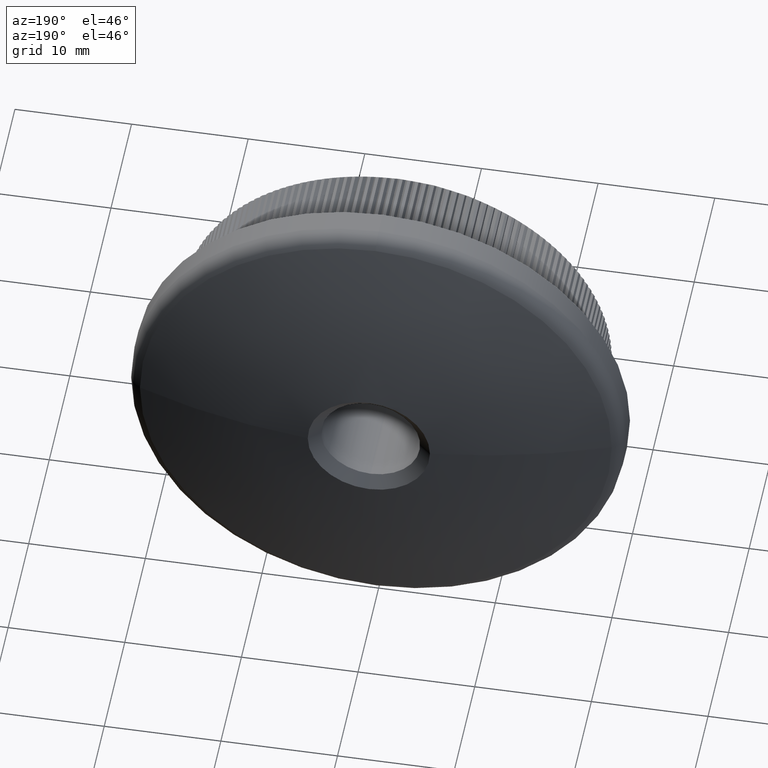
[diagram: clean part render]
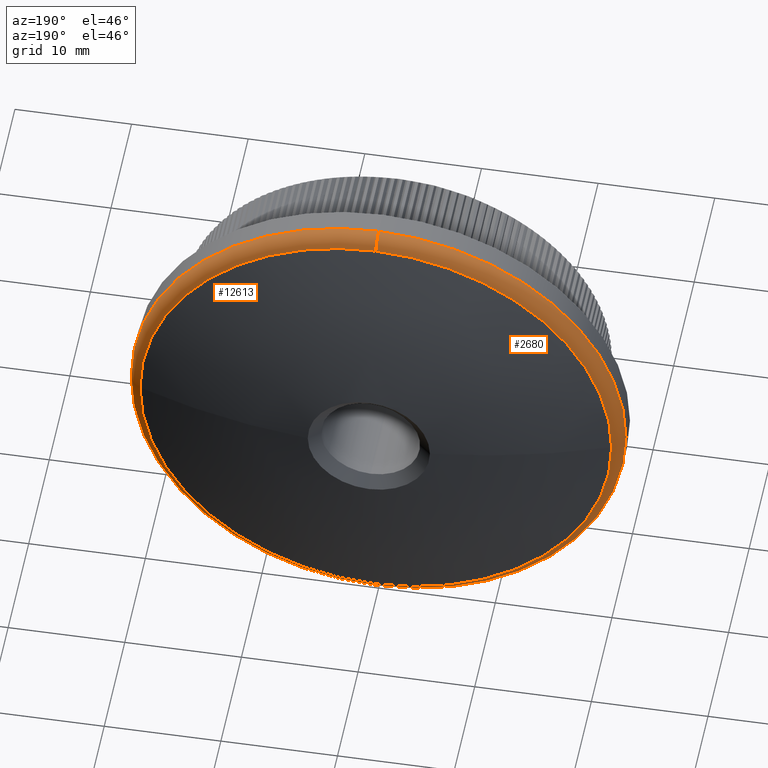
[diagram: same view with one multi-face feature highlighted, each face labeled with its STEP entity id]
A machine part, auxiliary view. The highlighted faces form ONE feature: a constant-radius fillet chain: 2 tangent blend faces with common blend radius 1.5 mm. The faces share edges in the B-rep.
Their STEP definitions:
[1] entity #12613 (Torus):
#208 = EDGE_CURVE ( 'NONE', #25023, #24635, #15326, .T. ) ;
#253 = EDGE_CURVE ( 'NONE', #29032, #4001, #10134, .T. ) ;
#1217 = ORIENTED_EDGE ( 'NONE', *, *, #9203, .F. ) ;
#1534 = CARTESIAN_POINT ( 'NONE',  ( 2.596251214192389200E-015, 9.966330070852492900, 21.20000000000000300 ) ) ;
#2804 = DIRECTION ( 'NONE',  ( 0.0000000000000000000, 0.0000000000000000000, -1.000000000000000000 ) ) ;
#3264 = AXIS2_PLACEMENT_3D ( 'NONE', #26997, #15150, #19947 ) ;
#3289 = VERTEX_POINT ( 'NONE', #25928 ) ;
#4001 = VERTEX_POINT ( 'NONE', #4690 ) ;
#4453 = DIRECTION ( 'NONE',  ( 0.0000000000000000000, 0.0000000000000000000, -1.000000000000000000 ) ) ;
#4690 = CARTESIAN_POINT ( 'NONE',  ( 0.0000000000000000000, 9.966330070852492900, -21.20000000000000300 ) ) ;
#4930 = CIRCLE ( 'NONE', #3264, 20.22134791813691000 ) ;
#5394 = CARTESIAN_POINT ( 'NONE',  ( 2.412554194320286400E-015, 9.966330070852492900, 19.70000000000000300 ) ) ;
#7338 = AXIS2_PLACEMENT_3D ( 'NONE', #15209, #10259, #17723 ) ;
#7886 = DIRECTION ( 'NONE',  ( -0.0000000000000000000, -1.000000000000000000, -0.0000000000000000000 ) ) ;
#9203 = EDGE_CURVE ( 'NONE', #25023, #3289, #4930, .T. ) ;
#10134 = CIRCLE ( 'NONE', #7338, 1.500000000000001300 ) ;
#10259 = DIRECTION ( 'NONE',  ( -1.000000000000000000, 0.0000000000000000000, 0.0000000000000000000 ) ) ;
#10604 = CARTESIAN_POINT ( 'NONE',  ( 2.536326057215763400E-015, 11.37281375303810000, 20.22134791813691000 ) ) ;
#11655 = EDGE_CURVE ( 'NONE', #4001, #24635, #15926, .T. ) ;
#12081 = AXIS2_PLACEMENT_3D ( 'NONE', #5394, #12326, #26362 ) ;
#12326 = DIRECTION ( 'NONE',  ( 1.000000000000000000, 0.0000000000000000000, -1.224646799147353500E-016 ) ) ;
#12613 = ADVANCED_FACE ( 'NONE', ( #30386 ), #21514, .T. ) ;
#14249 = AXIS2_PLACEMENT_3D ( 'NONE', #15098, #17502, #19899 ) ;
#15098 = CARTESIAN_POINT ( 'NONE',  ( 0.0000000000000000000, 11.37281375303810000, 0.0000000000000000000 ) ) ;
#15150 = DIRECTION ( 'NONE',  ( 0.0000000000000000000, 1.000000000000000000, 0.0000000000000000000 ) ) ;
#15209 = CARTESIAN_POINT ( 'NONE',  ( 0.0000000000000000000, 9.966330070852492900, -19.70000000000000300 ) ) ;
#15326 = CIRCLE ( 'NONE', #12081, 1.500000000000001300 ) ;
#15926 = CIRCLE ( 'NONE', #29944, 21.20000000000000300 ) ;
#16457 = AXIS2_PLACEMENT_3D ( 'NONE', #25710, #16486, #4453 ) ;
#16486 = DIRECTION ( 'NONE',  ( -0.0000000000000000000, -1.000000000000000000, -0.0000000000000000000 ) ) ;
#17502 = DIRECTION ( 'NONE',  ( 0.0000000000000000000, 1.000000000000000000, 0.0000000000000000000 ) ) ;
#17723 = DIRECTION ( 'NONE',  ( 0.0000000000000000000, 0.0000000000000000000, 1.000000000000000000 ) ) ;
#19188 = ORIENTED_EDGE ( 'NONE', *, *, #26548, .F. ) ;
#19310 = CIRCLE ( 'NONE', #14249, 20.22134791813691000 ) ;
#19899 = DIRECTION ( 'NONE',  ( 0.0000000000000000000, 0.0000000000000000000, -1.000000000000000000 ) ) ;
#19947 = DIRECTION ( 'NONE',  ( 0.0000000000000000000, 0.0000000000000000000, -1.000000000000000000 ) ) ;
#21316 = ORIENTED_EDGE ( 'NONE', *, *, #253, .F. ) ;
#21514 = TOROIDAL_SURFACE ( 'NONE', #16457, 19.70000000000000300, 1.500000000000000000 ) ;
#21927 = CARTESIAN_POINT ( 'NONE',  ( 0.0000000000000000000, 9.966330070852492900, 0.0000000000000000000 ) ) ;
#24635 = VERTEX_POINT ( 'NONE', #1534 ) ;
#25023 = VERTEX_POINT ( 'NONE', #10604 ) ;
#25710 = CARTESIAN_POINT ( 'NONE',  ( 0.0000000000000000000, 9.966330070852492900, 0.0000000000000000000 ) ) ;
#25928 = CARTESIAN_POINT ( 'NONE',  ( 20.22134791813689200, 11.37281375303809700, 0.0000000000000000000 ) ) ;
#26362 = DIRECTION ( 'NONE',  ( -1.224646799147352000E-016, 0.0000000000000000000, -1.000000000000000000 ) ) ;
#26548 = EDGE_CURVE ( 'NONE', #3289, #29032, #19310, .T. ) ;
#26997 = CARTESIAN_POINT ( 'NONE',  ( 0.0000000000000000000, 11.37281375303810000, 0.0000000000000000000 ) ) ;
#27048 = CARTESIAN_POINT ( 'NONE',  ( 0.0000000000000000000, 11.37281375303810000, -20.22134791813691000 ) ) ;
#27694 = ORIENTED_EDGE ( 'NONE', *, *, #11655, .F. ) ;
#28375 = ORIENTED_EDGE ( 'NONE', *, *, #208, .T. ) ;
#29032 = VERTEX_POINT ( 'NONE', #27048 ) ;
#29944 = AXIS2_PLACEMENT_3D ( 'NONE', #21927, #7886, #2804 ) ;
#30386 = FACE_OUTER_BOUND ( 'NONE', #30766, .T. ) ;
#30766 = EDGE_LOOP ( 'NONE', ( #1217, #28375, #27694, #21316, #19188 ) ) ;
[2] entity #2680 (Torus):
#123 = EDGE_LOOP ( 'NONE', ( #3266, #27865, #7404, #30502, #4202 ) ) ;
#208 = EDGE_CURVE ( 'NONE', #25023, #24635, #15326, .T. ) ;
#253 = EDGE_CURVE ( 'NONE', #29032, #4001, #10134, .T. ) ;
#360 = AXIS2_PLACEMENT_3D ( 'NONE', #30629, #6979, #25947 ) ;
#568 = EDGE_CURVE ( 'NONE', #24635, #4001, #8993, .T. ) ;
#1534 = CARTESIAN_POINT ( 'NONE',  ( 2.596251214192389200E-015, 9.966330070852492900, 21.20000000000000300 ) ) ;
#2680 = ADVANCED_FACE ( 'NONE', ( #30125 ), #7823, .T. ) ;
#2974 = EDGE_CURVE ( 'NONE', #20984, #25023, #18249, .T. ) ;
#3139 = AXIS2_PLACEMENT_3D ( 'NONE', #9086, #30376, #16370 ) ;
#3266 = ORIENTED_EDGE ( 'NONE', *, *, #208, .F. ) ;
#4001 = VERTEX_POINT ( 'NONE', #4690 ) ;
#4202 = ORIENTED_EDGE ( 'NONE', *, *, #568, .F. ) ;
#4281 = DIRECTION ( 'NONE',  ( 0.0000000000000000000, 0.0000000000000000000, -1.000000000000000000 ) ) ;
#4690 = CARTESIAN_POINT ( 'NONE',  ( 0.0000000000000000000, 9.966330070852492900, -21.20000000000000300 ) ) ;
#5394 = CARTESIAN_POINT ( 'NONE',  ( 2.412554194320286400E-015, 9.966330070852492900, 19.70000000000000300 ) ) ;
#6979 = DIRECTION ( 'NONE',  ( 0.0000000000000000000, 1.000000000000000000, 0.0000000000000000000 ) ) ;
#7338 = AXIS2_PLACEMENT_3D ( 'NONE', #15209, #10259, #17723 ) ;
#7404 = ORIENTED_EDGE ( 'NONE', *, *, #23170, .F. ) ;
#7823 = TOROIDAL_SURFACE ( 'NONE', #14326, 19.70000000000000300, 1.500000000000000000 ) ;
#8993 = CIRCLE ( 'NONE', #3139, 21.20000000000000300 ) ;
#9086 = CARTESIAN_POINT ( 'NONE',  ( 0.0000000000000000000, 9.966330070852492900, 0.0000000000000000000 ) ) ;
#9377 = CARTESIAN_POINT ( 'NONE',  ( 0.0000000000000000000, 9.966330070852492900, 0.0000000000000000000 ) ) ;
#10134 = CIRCLE ( 'NONE', #7338, 1.500000000000001300 ) ;
#10259 = DIRECTION ( 'NONE',  ( -1.000000000000000000, 0.0000000000000000000, 0.0000000000000000000 ) ) ;
#10604 = CARTESIAN_POINT ( 'NONE',  ( 2.536326057215763400E-015, 11.37281375303810000, 20.22134791813691000 ) ) ;
#11619 = DIRECTION ( 'NONE',  ( 0.0000000000000000000, 1.000000000000000000, 0.0000000000000000000 ) ) ;
#11759 = DIRECTION ( 'NONE',  ( 0.0000000000000000000, 0.0000000000000000000, -1.000000000000000000 ) ) ;
#12081 = AXIS2_PLACEMENT_3D ( 'NONE', #5394, #12326, #26362 ) ;
#12326 = DIRECTION ( 'NONE',  ( 1.000000000000000000, 0.0000000000000000000, -1.224646799147353500E-016 ) ) ;
#14326 = AXIS2_PLACEMENT_3D ( 'NONE', #9377, #25981, #11759 ) ;
#15209 = CARTESIAN_POINT ( 'NONE',  ( 0.0000000000000000000, 9.966330070852492900, -19.70000000000000300 ) ) ;
#15326 = CIRCLE ( 'NONE', #12081, 1.500000000000001300 ) ;
#16370 = DIRECTION ( 'NONE',  ( 0.0000000000000000000, 0.0000000000000000000, -1.000000000000000000 ) ) ;
#16495 = CARTESIAN_POINT ( 'NONE',  ( -20.22134791813689200, 11.37281375303809700, 2.476400900239134100E-015 ) ) ;
#17723 = DIRECTION ( 'NONE',  ( 0.0000000000000000000, 0.0000000000000000000, 1.000000000000000000 ) ) ;
#18249 = CIRCLE ( 'NONE', #20089, 20.22134791813691000 ) ;
#19017 = CIRCLE ( 'NONE', #360, 20.22134791813691000 ) ;
#20089 = AXIS2_PLACEMENT_3D ( 'NONE', #27919, #11619, #4281 ) ;
#20984 = VERTEX_POINT ( 'NONE', #16495 ) ;
#23170 = EDGE_CURVE ( 'NONE', #29032, #20984, #19017, .T. ) ;
#24635 = VERTEX_POINT ( 'NONE', #1534 ) ;
#25023 = VERTEX_POINT ( 'NONE', #10604 ) ;
#25947 = DIRECTION ( 'NONE',  ( 0.0000000000000000000, 0.0000000000000000000, -1.000000000000000000 ) ) ;
#25981 = DIRECTION ( 'NONE',  ( -0.0000000000000000000, -1.000000000000000000, -0.0000000000000000000 ) ) ;
#26362 = DIRECTION ( 'NONE',  ( -1.224646799147352000E-016, 0.0000000000000000000, -1.000000000000000000 ) ) ;
#27048 = CARTESIAN_POINT ( 'NONE',  ( 0.0000000000000000000, 11.37281375303810000, -20.22134791813691000 ) ) ;
#27865 = ORIENTED_EDGE ( 'NONE', *, *, #2974, .F. ) ;
#27919 = CARTESIAN_POINT ( 'NONE',  ( 0.0000000000000000000, 11.37281375303810000, 0.0000000000000000000 ) ) ;
#29032 = VERTEX_POINT ( 'NONE', #27048 ) ;
#30125 = FACE_OUTER_BOUND ( 'NONE', #123, .T. ) ;
#30376 = DIRECTION ( 'NONE',  ( -0.0000000000000000000, -1.000000000000000000, -0.0000000000000000000 ) ) ;
#30502 = ORIENTED_EDGE ( 'NONE', *, *, #253, .T. ) ;
#30629 = CARTESIAN_POINT ( 'NONE',  ( 0.0000000000000000000, 11.37281375303810000, 0.0000000000000000000 ) ) ;